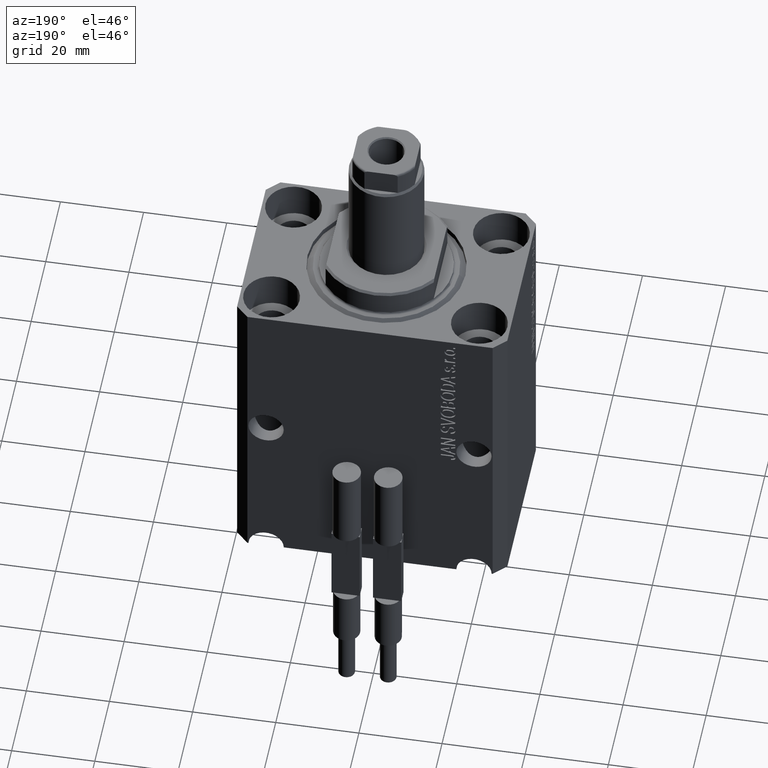
[diagram: clean part render]
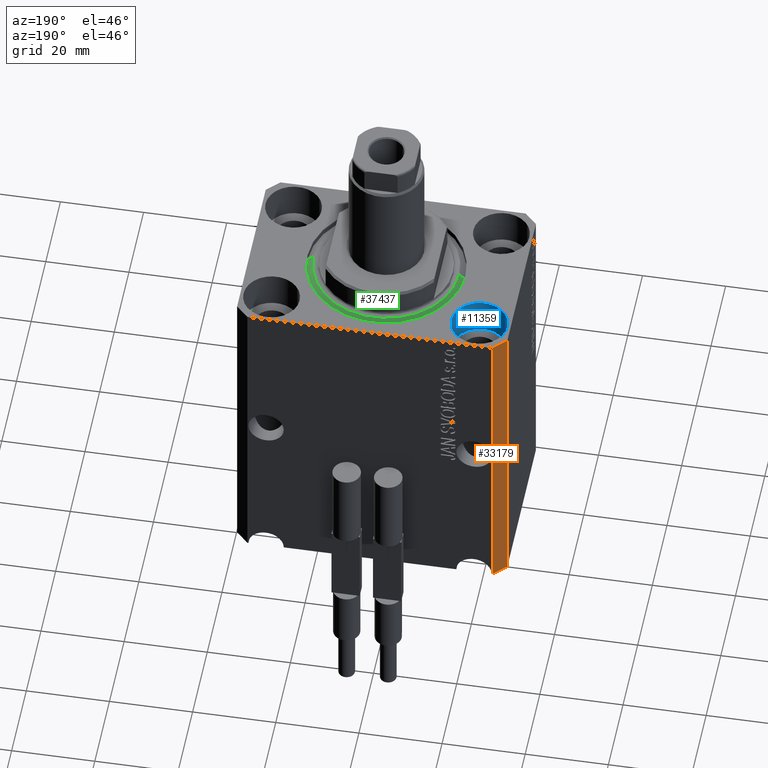
[diagram: same view with three faces highlighted in distinct colors, each labeled with its STEP entity id]
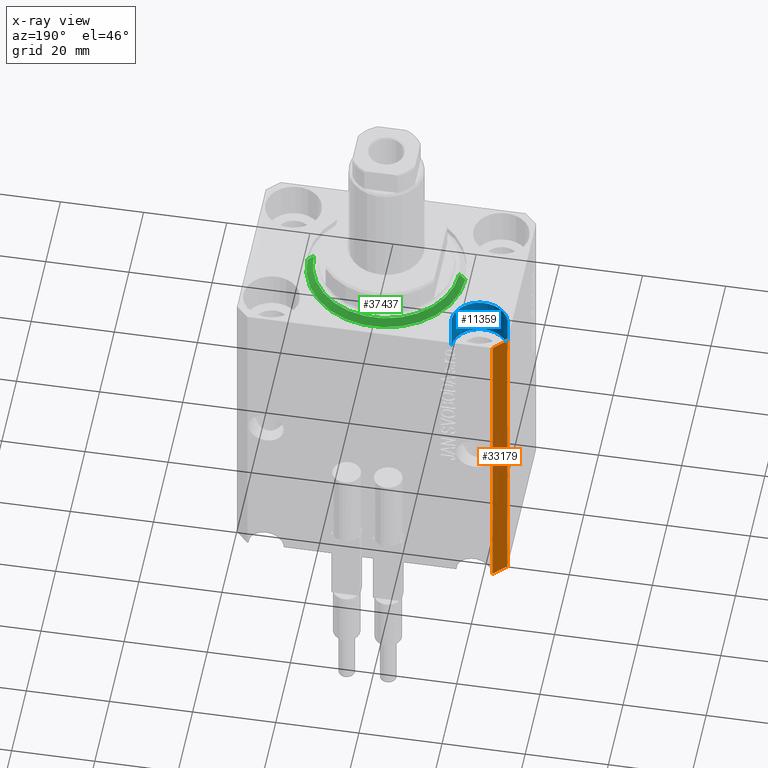
[diagram: x-ray of the same camera — body ghosted, the three highlighted faces saturated]
A machine part, auxiliary view with three faces highlighted in distinct colors.
The next image is the same camera in x-ray (body ghosted, the three faces saturated) — at least one of them is partly hidden behind the body in this view.
Their STEP definitions:

[orange] entity #33179 — the highlighted planar face has unit normal (-0.7071, 0.7071, 0).
#693 = ORIENTED_EDGE ( 'NONE', *, *, #31821, .T. ) ;
#1332 = EDGE_CURVE ( 'NONE', #36170, #34800, #20668, .T. ) ;
#1502 = PLANE ( 'NONE',  #42382 ) ;
#2171 = CARTESIAN_POINT ( 'NONE',  ( -32.49999999999650413, 19.49999999999949907, 0.000000000000000000 ) ) ;
#3271 = DIRECTION ( 'NONE',  ( 0.000000000000000000, 0.000000000000000000, 1.000000000000000000 ) ) ;
#3501 = LINE ( 'NONE', #34690, #30890 ) ;
#6842 = ORIENTED_EDGE ( 'NONE', *, *, #41162, .F. ) ;
#8382 = DIRECTION ( 'NONE',  ( -0.7071067811865475727, 0.7071067811865475727, 0.000000000000000000 ) ) ;
#8734 = LINE ( 'NONE', #26603, #18153 ) ;
#9271 = DIRECTION ( 'NONE',  ( -0.7071067811865474617, -0.7071067811865474617, 0.000000000000000000 ) ) ;
#9428 = CARTESIAN_POINT ( 'NONE',  ( -29.49999999999650413, 22.49999999999949907, 0.000000000000000000 ) ) ;
#11238 = VECTOR ( 'NONE', #16776, 1000.000000000000114 ) ;
#11401 = VERTEX_POINT ( 'NONE', #31441 ) ;
#11595 = FACE_OUTER_BOUND ( 'NONE', #36125, .T. ) ;
#13960 = DIRECTION ( 'NONE',  ( 0.000000000000000000, 0.000000000000000000, 1.000000000000000000 ) ) ;
#14180 = ORIENTED_EDGE ( 'NONE', *, *, #30518, .T. ) ;
#16776 = DIRECTION ( 'NONE',  ( -0.7071067811865474617, -0.7071067811865474617, 0.000000000000000000 ) ) ;
#18153 = VECTOR ( 'NONE', #26833, 1000.000000000000114 ) ;
#19060 = CARTESIAN_POINT ( 'NONE',  ( -29.49999999999650413, 22.49999999999949907, 0.000000000000000000 ) ) ;
#19625 = CARTESIAN_POINT ( 'NONE',  ( -29.49999999999650413, 22.49999999999949907, -77.00000000000000000 ) ) ;
#20399 = VECTOR ( 'NONE', #13960, 1000.000000000000000 ) ;
#20668 = LINE ( 'NONE', #9428, #11238 ) ;
#26603 = CARTESIAN_POINT ( 'NONE',  ( -29.49999999999650413, 22.49999999999949907, -77.00000000000000000 ) ) ;
#26833 = DIRECTION ( 'NONE',  ( -0.7071067811865474617, -0.7071067811865474617, 0.000000000000000000 ) ) ;
#30518 = EDGE_CURVE ( 'NONE', #37947, #11401, #8734, .T. ) ;
#30890 = VECTOR ( 'NONE', #3271, 1000.000000000000000 ) ;
#31441 = CARTESIAN_POINT ( 'NONE',  ( -32.49999999999650413, 19.49999999999949907, -77.00000000000000000 ) ) ;
#31821 = EDGE_CURVE ( 'NONE', #11401, #34800, #34372, .T. ) ;
#33179 = ADVANCED_FACE ( 'NONE', ( #11595 ), #1502, .T. ) ;
#34372 = LINE ( 'NONE', #37810, #20399 ) ;
#34690 = CARTESIAN_POINT ( 'NONE',  ( -29.49999999999650413, 22.49999999999949907, -77.00000000000000000 ) ) ;
#34800 = VERTEX_POINT ( 'NONE', #2171 ) ;
#36125 = EDGE_LOOP ( 'NONE', ( #44987, #6842, #14180, #693 ) ) ;
#36170 = VERTEX_POINT ( 'NONE', #19060 ) ;
#37810 = CARTESIAN_POINT ( 'NONE',  ( -32.49999999999650413, 19.49999999999949907, -77.00000000000000000 ) ) ;
#37947 = VERTEX_POINT ( 'NONE', #42799 ) ;
#41162 = EDGE_CURVE ( 'NONE', #37947, #36170, #3501, .T. ) ;
#42382 = AXIS2_PLACEMENT_3D ( 'NONE', #19625, #8382, #9271 ) ;
#42799 = CARTESIAN_POINT ( 'NONE',  ( -29.49999999999650413, 22.49999999999949907, -77.00000000000000000 ) ) ;
#44987 = ORIENTED_EDGE ( 'NONE', *, *, #1332, .F. ) ;

[blue] entity #11359 — the highlighted cylindrical surface (edge-blend (fillet) strip) has radius 6.75 mm, axis along (0, 0, 1).
#132 = CARTESIAN_POINT ( 'NONE',  ( -18.24999999997747224, 15.00000000000000000, 0.000000000000000000 ) ) ;
#989 = DIRECTION ( 'NONE',  ( 1.000000000000000000, 0.000000000000000000, 0.000000000000000000 ) ) ;
#1131 = EDGE_CURVE ( 'NONE', #28663, #38874, #25189, .T. ) ;
#2759 = ORIENTED_EDGE ( 'NONE', *, *, #16169, .F. ) ;
#2777 = CYLINDRICAL_SURFACE ( 'NONE', #41457, 6.750000000022533087 ) ;
#4435 = DIRECTION ( 'NONE',  ( 1.000000000000000000, 0.000000000000000000, 0.000000000000000000 ) ) ;
#6018 = EDGE_CURVE ( 'NONE', #32184, #28663, #25979, .T. ) ;
#10093 = DIRECTION ( 'NONE',  ( 1.000000000000000000, 0.000000000000000000, 0.000000000000000000 ) ) ;
#11359 = ADVANCED_FACE ( 'NONE', ( #20201 ), #2777, .F. ) ;
#11542 = CARTESIAN_POINT ( 'NONE',  ( -31.75000000002253842, 15.00000000000000000, -9.000000000000000000 ) ) ;
#12549 = DIRECTION ( 'NONE',  ( -0.000000000000000000, -0.000000000000000000, 1.000000000000000000 ) ) ;
#16169 = EDGE_CURVE ( 'NONE', #20881, #38874, #37532, .T. ) ;
#20201 = FACE_OUTER_BOUND ( 'NONE', #28302, .T. ) ;
#20573 = ORIENTED_EDGE ( 'NONE', *, *, #6018, .T. ) ;
#20881 = VERTEX_POINT ( 'NONE', #35874 ) ;
#22372 = VECTOR ( 'NONE', #36981, 1000.000000000000000 ) ;
#23757 = CARTESIAN_POINT ( 'NONE',  ( -31.75000000002253842, 15.00000000000000000, -9.000000000000000000 ) ) ;
#24788 = EDGE_CURVE ( 'NONE', #32184, #20881, #43719, .T. ) ;
#25189 = CIRCLE ( 'NONE', #37620, 6.750000000022533087 ) ;
#25298 = CARTESIAN_POINT ( 'NONE',  ( -25.00000000000000355, 15.00000000000000000, -9.000000000000000000 ) ) ;
#25979 = LINE ( 'NONE', #11542, #22372 ) ;
#27597 = AXIS2_PLACEMENT_3D ( 'NONE', #25298, #35858, #4435 ) ;
#28302 = EDGE_LOOP ( 'NONE', ( #30860, #20573, #43933, #2759 ) ) ;
#28663 = VERTEX_POINT ( 'NONE', #35973 ) ;
#30749 = CARTESIAN_POINT ( 'NONE',  ( -25.00000000000000355, 15.00000000000000000, -9.000000000000000000 ) ) ;
#30860 = ORIENTED_EDGE ( 'NONE', *, *, #24788, .F. ) ;
#32184 = VERTEX_POINT ( 'NONE', #23757 ) ;
#35858 = DIRECTION ( 'NONE',  ( 0.000000000000000000, 0.000000000000000000, 1.000000000000000000 ) ) ;
#35874 = CARTESIAN_POINT ( 'NONE',  ( -18.24999999997747224, 15.00000000000000000, -9.000000000000000000 ) ) ;
#35973 = CARTESIAN_POINT ( 'NONE',  ( -31.75000000002253842, 15.00000000000000000, 0.000000000000000000 ) ) ;
#36981 = DIRECTION ( 'NONE',  ( -0.000000000000000000, -0.000000000000000000, 1.000000000000000000 ) ) ;
#37532 = LINE ( 'NONE', #40514, #44205 ) ;
#37620 = AXIS2_PLACEMENT_3D ( 'NONE', #42252, #39279, #989 ) ;
#38874 = VERTEX_POINT ( 'NONE', #132 ) ;
#39279 = DIRECTION ( 'NONE',  ( 0.000000000000000000, 0.000000000000000000, 1.000000000000000000 ) ) ;
#40514 = CARTESIAN_POINT ( 'NONE',  ( -18.24999999997747224, 15.00000000000000000, -9.000000000000000000 ) ) ;
#41457 = AXIS2_PLACEMENT_3D ( 'NONE', #30749, #44709, #10093 ) ;
#42252 = CARTESIAN_POINT ( 'NONE',  ( -25.00000000000000355, 15.00000000000000000, 0.000000000000000000 ) ) ;
#43719 = CIRCLE ( 'NONE', #27597, 6.750000000022533087 ) ;
#43933 = ORIENTED_EDGE ( 'NONE', *, *, #1131, .T. ) ;
#44205 = VECTOR ( 'NONE', #12549, 1000.000000000000000 ) ;
#44709 = DIRECTION ( 'NONE',  ( -0.000000000000000000, -0.000000000000000000, 1.000000000000000000 ) ) ;

[green] entity #37437 — the highlighted conical surface has half-angle 45 deg.
#1410 = FACE_OUTER_BOUND ( 'NONE', #22018, .T. ) ;
#2251 = VERTEX_POINT ( 'NONE', #18875 ) ;
#2830 = CARTESIAN_POINT ( 'NONE',  ( 17.49999999999999645, 0.000000000000000000, 0.000000000000000000 ) ) ;
#4984 = VECTOR ( 'NONE', #23253, 1000.000000000000000 ) ;
#5259 = ORIENTED_EDGE ( 'NONE', *, *, #22898, .T. ) ;
#5591 = DIRECTION ( 'NONE',  ( -0.7071067811865483499, 8.659560562354942719E-17, 0.7071067811865467956 ) ) ;
#7055 = CIRCLE ( 'NONE', #38548, 19.00000000000000000 ) ;
#7371 = AXIS2_PLACEMENT_3D ( 'NONE', #15404, #11942, #28931 ) ;
#9494 = CARTESIAN_POINT ( 'NONE',  ( -19.00000000000000000, 0.000000000000000000, 1.500000000000001332 ) ) ;
#10771 = ORIENTED_EDGE ( 'NONE', *, *, #27723, .F. ) ;
#11942 = DIRECTION ( 'NONE',  ( -0.000000000000000000, -0.000000000000000000, 1.000000000000000000 ) ) ;
#12319 = CARTESIAN_POINT ( 'NONE',  ( 19.00000000000000000, 2.326828918379970970E-15, 1.500000000000001332 ) ) ;
#12479 = CARTESIAN_POINT ( 'NONE',  ( 19.00000000000000000, 0.000000000000000000, 1.500000000000001332 ) ) ;
#12861 = VERTEX_POINT ( 'NONE', #12319 ) ;
#12952 = ORIENTED_EDGE ( 'NONE', *, *, #22223, .F. ) ;
#15404 = CARTESIAN_POINT ( 'NONE',  ( 0.000000000000000000, 0.000000000000000000, 1.500000000000001332 ) ) ;
#15694 = LINE ( 'NONE', #30128, #18060 ) ;
#16489 = VERTEX_POINT ( 'NONE', #9494 ) ;
#18060 = VECTOR ( 'NONE', #5591, 1000.000000000000000 ) ;
#18875 = CARTESIAN_POINT ( 'NONE',  ( -17.49999999999999645, 2.234980408443919215E-15, 0.000000000000000000 ) ) ;
#22018 = EDGE_LOOP ( 'NONE', ( #34405, #5259, #12952, #10771 ) ) ;
#22223 = EDGE_CURVE ( 'NONE', #12861, #16489, #7055, .T. ) ;
#22898 = EDGE_CURVE ( 'NONE', #2251, #16489, #15694, .T. ) ;
#23253 = DIRECTION ( 'NONE',  ( 0.7071067811865483499, 0.000000000000000000, 0.7071067811865467956 ) ) ;
#24025 = AXIS2_PLACEMENT_3D ( 'NONE', #30492, #37148, #27038 ) ;
#27038 = DIRECTION ( 'NONE',  ( 1.000000000000000000, 0.000000000000000000, 0.000000000000000000 ) ) ;
#27723 = EDGE_CURVE ( 'NONE', #39312, #12861, #43876, .T. ) ;
#28931 = DIRECTION ( 'NONE',  ( 1.000000000000000000, 0.000000000000000000, 0.000000000000000000 ) ) ;
#29341 = CONICAL_SURFACE ( 'NONE', #7371, 19.00000000000000000, 0.7853981633974492782 ) ;
#30128 = CARTESIAN_POINT ( 'NONE',  ( -19.00000000000000000, 2.326828918379970970E-15, 1.500000000000001332 ) ) ;
#30492 = CARTESIAN_POINT ( 'NONE',  ( 0.000000000000000000, 0.000000000000000000, 0.000000000000000000 ) ) ;
#31294 = EDGE_CURVE ( 'NONE', #2251, #39312, #35045, .T. ) ;
#34405 = ORIENTED_EDGE ( 'NONE', *, *, #31294, .F. ) ;
#35045 = CIRCLE ( 'NONE', #24025, 17.49999999999999645 ) ;
#37148 = DIRECTION ( 'NONE',  ( -0.000000000000000000, -0.000000000000000000, -1.000000000000000000 ) ) ;
#37344 = DIRECTION ( 'NONE',  ( 1.000000000000000000, 0.000000000000000000, 0.000000000000000000 ) ) ;
#37437 = ADVANCED_FACE ( 'NONE', ( #1410 ), #29341, .T. ) ;
#38548 = AXIS2_PLACEMENT_3D ( 'NONE', #40772, #44198, #37344 ) ;
#39312 = VERTEX_POINT ( 'NONE', #2830 ) ;
#40772 = CARTESIAN_POINT ( 'NONE',  ( 0.000000000000000000, 0.000000000000000000, 1.500000000000001332 ) ) ;
#43876 = LINE ( 'NONE', #12479, #4984 ) ;
#44198 = DIRECTION ( 'NONE',  ( -0.000000000000000000, -0.000000000000000000, 1.000000000000000000 ) ) ;